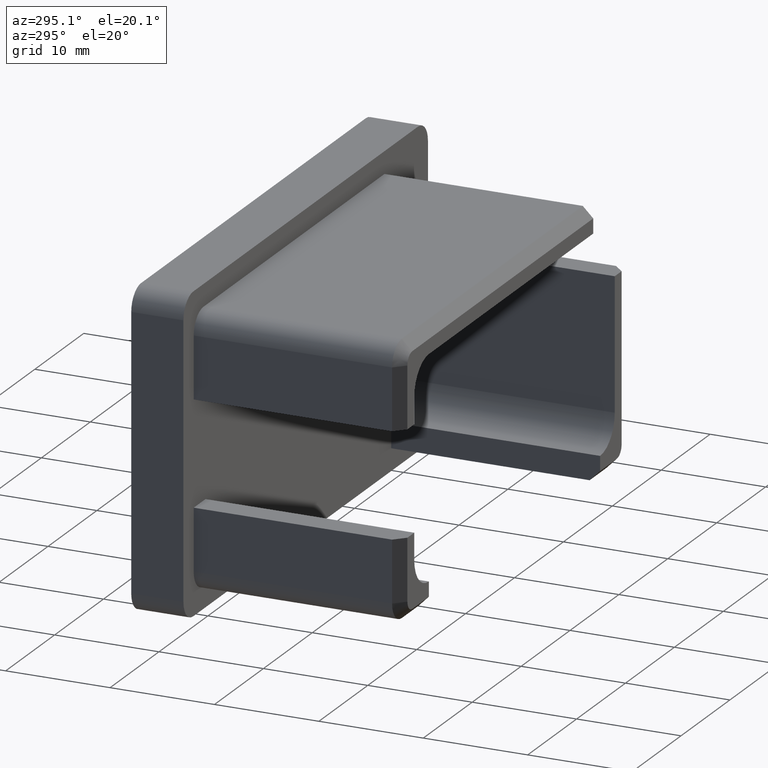
[diagram: clean part render]
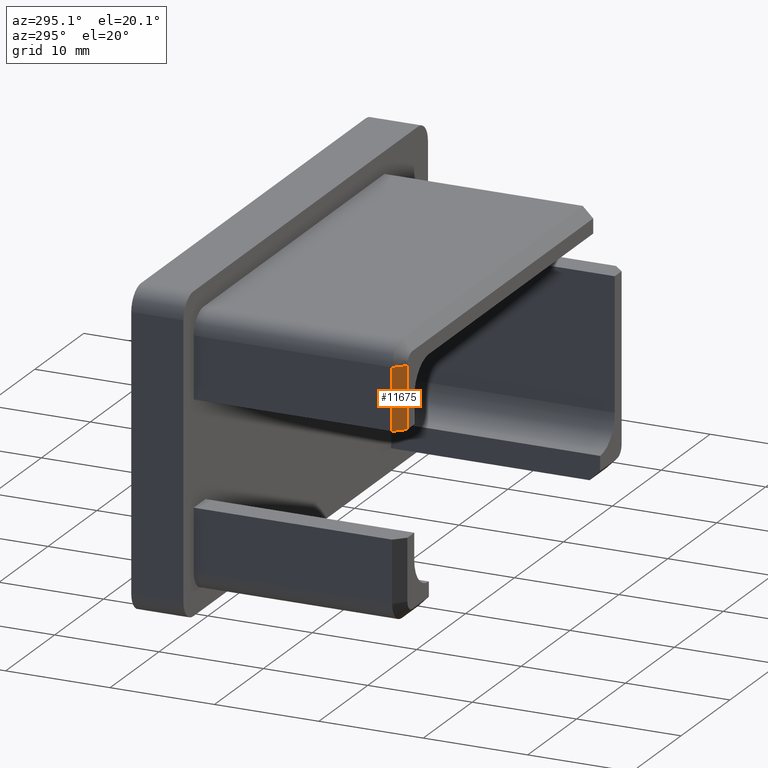
[diagram: same view with one face highlighted and labeled with its STEP entity id]
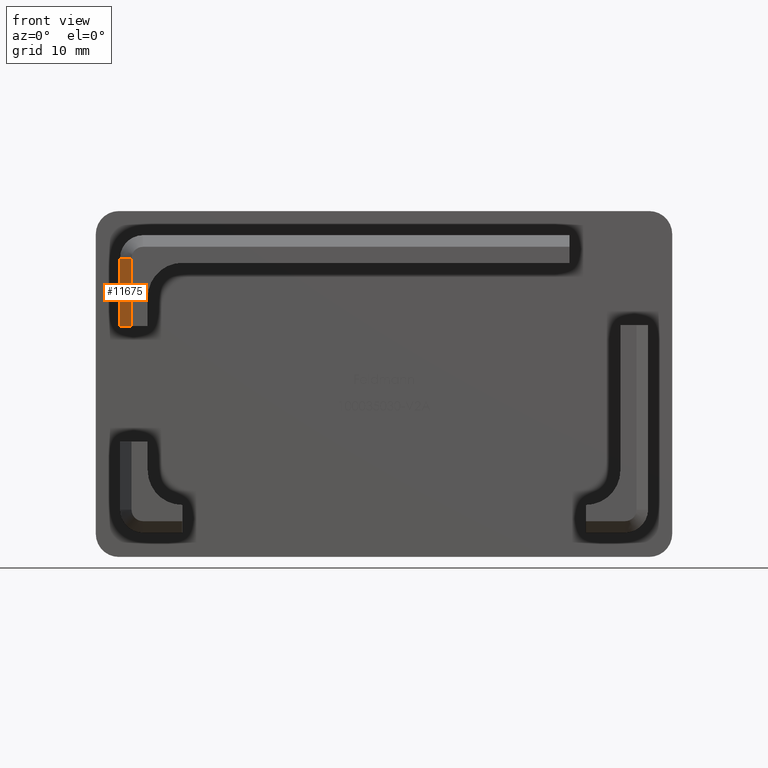
[diagram: same view with one face highlighted and labeled with its STEP entity id]
A machine part, auxiliary view. The second image highlights one B-rep face of the part: STEP entity #11675.
A second angle (front view) of the same face is appended — the face is thin or edge-on in the first view.
In plain terms, the highlighted planar face has unit normal (-0.7071, -0.7071, 0).
Its self-contained STEP definition (entity closure, byte-faithful):
#1425 = EDGE_LOOP ( 'NONE', ( #16103, #8453, #12083, #6925 ) ) ;
#2541 = LINE ( 'NONE', #16918, #14211 ) ;
#2750 = EDGE_CURVE ( 'NONE', #17049, #16655, #10438, .T. ) ;
#2788 = VECTOR ( 'NONE', #2988, 1000.000000000000000 ) ;
#2988 = DIRECTION ( 'NONE',  ( 0.000000000000000000, 0.000000000000000000, 1.000000000000000000 ) ) ;
#3910 = EDGE_CURVE ( 'NONE', #16655, #7021, #2541, .T. ) ;
#4786 = FACE_OUTER_BOUND ( 'NONE', #1425, .T. ) ;
#5903 = CARTESIAN_POINT ( 'NONE',  ( -21.90000000000001279, -20.00000000000000000, 4.999999999999994671 ) ) ;
#6150 = AXIS2_PLACEMENT_3D ( 'NONE', #15237, #9895, #15356 ) ;
#6925 = ORIENTED_EDGE ( 'NONE', *, *, #2750, .F. ) ;
#6957 = VERTEX_POINT ( 'NONE', #11145 ) ;
#7021 = VERTEX_POINT ( 'NONE', #10074 ) ;
#8330 = EDGE_CURVE ( 'NONE', #6957, #17049, #9480, .T. ) ;
#8453 = ORIENTED_EDGE ( 'NONE', *, *, #13847, .F. ) ;
#8527 = VECTOR ( 'NONE', #11278, 1000.000000000000000 ) ;
#8815 = CARTESIAN_POINT ( 'NONE',  ( -22.90000000000000568, -19.00000000000000000, 4.999999999999994671 ) ) ;
#9480 = LINE ( 'NONE', #13498, #17525 ) ;
#9835 = PLANE ( 'NONE',  #6150 ) ;
#9895 = DIRECTION ( 'NONE',  ( -0.7071067811865500152, -0.7071067811865451302, 0.000000000000000000 ) ) ;
#9983 = CARTESIAN_POINT ( 'NONE',  ( -22.90000000000000568, -19.00000000000000000, 10.90000000000000213 ) ) ;
#10074 = CARTESIAN_POINT ( 'NONE',  ( -21.90000000000001279, -20.00000000000000000, 10.90000000000000213 ) ) ;
#10106 = DIRECTION ( 'NONE',  ( 0.7071067811865451302, -0.7071067811865500152, 0.000000000000000000 ) ) ;
#10438 = LINE ( 'NONE', #9983, #2788 ) ;
#11145 = CARTESIAN_POINT ( 'NONE',  ( -21.90000000000001279, -20.00000000000000000, 4.999999999999994671 ) ) ;
#11278 = DIRECTION ( 'NONE',  ( 0.000000000000000000, 0.000000000000000000, -1.000000000000000000 ) ) ;
#11507 = CARTESIAN_POINT ( 'NONE',  ( -22.90000000000000568, -19.00000000000000000, 10.90000000000000213 ) ) ;
#11675 = ADVANCED_FACE ( 'NONE', ( #4786 ), #9835, .T. ) ;
#12083 = ORIENTED_EDGE ( 'NONE', *, *, #3910, .F. ) ;
#12123 = LINE ( 'NONE', #5903, #8527 ) ;
#13498 = CARTESIAN_POINT ( 'NONE',  ( -21.90000000000001279, -20.00000000000000000, 4.999999999999994671 ) ) ;
#13847 = EDGE_CURVE ( 'NONE', #7021, #6957, #12123, .T. ) ;
#14211 = VECTOR ( 'NONE', #10106, 1000.000000000000114 ) ;
#15237 = CARTESIAN_POINT ( 'NONE',  ( -21.90000000000001279, -20.00000000000000000, 0.000000000000000000 ) ) ;
#15356 = DIRECTION ( 'NONE',  ( -0.000000000000000000, 0.000000000000000000, 1.000000000000000000 ) ) ;
#16103 = ORIENTED_EDGE ( 'NONE', *, *, #8330, .F. ) ;
#16126 = DIRECTION ( 'NONE',  ( -0.7071067811865451302, 0.7071067811865500152, -0.000000000000000000 ) ) ;
#16655 = VERTEX_POINT ( 'NONE', #11507 ) ;
#16918 = CARTESIAN_POINT ( 'NONE',  ( -22.90000000000000568, -19.00000000000000000, 10.90000000000000213 ) ) ;
#17049 = VERTEX_POINT ( 'NONE', #8815 ) ;
#17525 = VECTOR ( 'NONE', #16126, 1000.000000000000114 ) ;